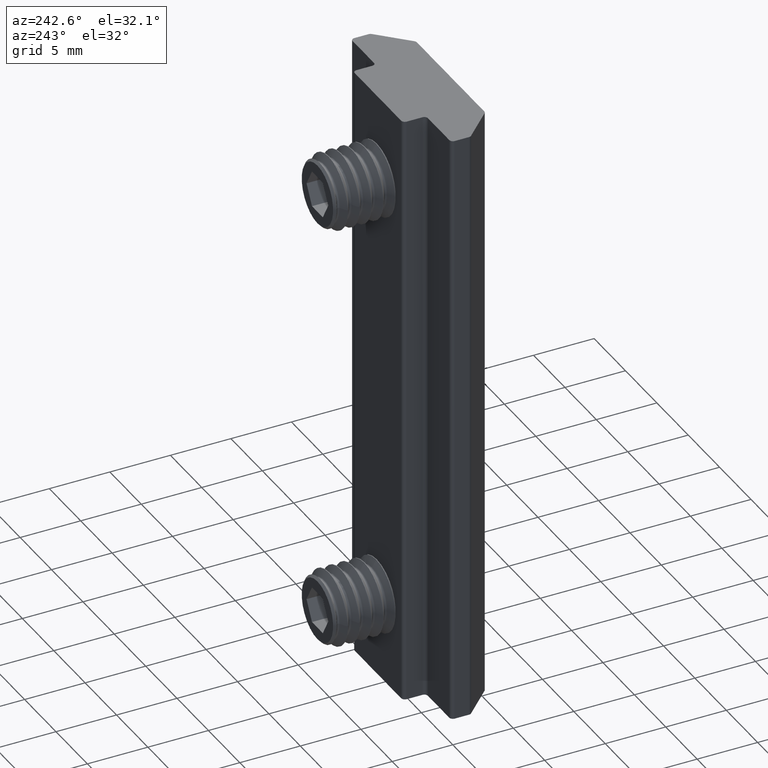
[diagram: clean part render]
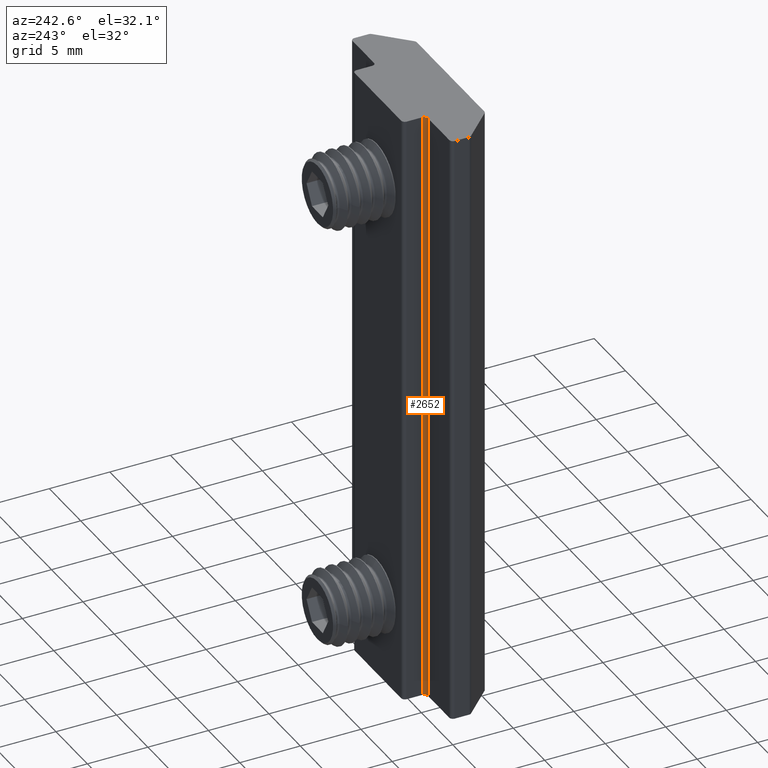
[diagram: same view with one face highlighted and labeled with its STEP entity id]
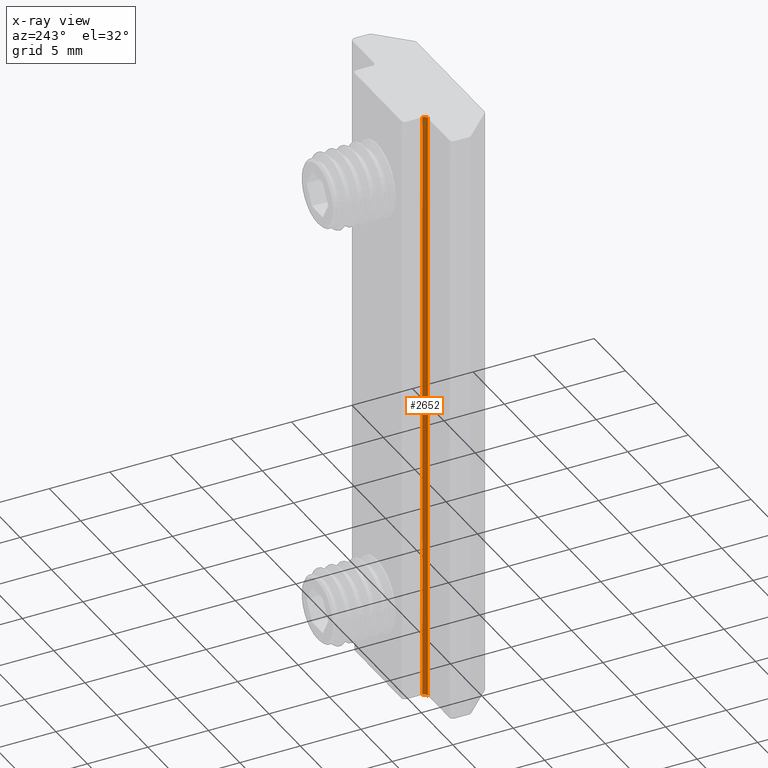
[diagram: x-ray of the same camera — body ghosted, the highlighted face saturated]
A machine part, auxiliary view. The second image highlights one B-rep face of the part: STEP entity #2652.
The next image is the same camera in x-ray: the body ghosted, the highlighted face saturated — about 0% of this face is hidden behind the body in this view.
In plain terms, the highlighted cylindrical surface (edge-blend (fillet) strip) has radius 0.3 mm, axis along (0, 0, 1).
Its self-contained STEP definition (entity closure, byte-faithful):
#135 = DIRECTION ( 'NONE',  ( 1.000000000000000000, 0.0000000000000000000, 0.0000000000000000000 ) ) ;
#172 = CARTESIAN_POINT ( 'NONE',  ( -4.299999999999997200, 4.099999999999997900, 25.00000000000000000 ) ) ;
#180 = VERTEX_POINT ( 'NONE', #1758 ) ;
#192 = DIRECTION ( 'NONE',  ( -0.0000000000000000000, 0.0000000000000000000, 1.000000000000000000 ) ) ;
#405 = VERTEX_POINT ( 'NONE', #1205 ) ;
#531 = CIRCLE ( 'NONE', #1572, 0.2999999999999999300 ) ;
#724 = VERTEX_POINT ( 'NONE', #1437 ) ;
#1117 = CARTESIAN_POINT ( 'NONE',  ( -4.299999999999997200, 4.399999999999997700, 25.00000000000000000 ) ) ;
#1122 = VECTOR ( 'NONE', #1414, 1000.000000000000000 ) ;
#1129 = DIRECTION ( 'NONE',  ( 0.0000000000000000000, 0.0000000000000000000, 1.000000000000000000 ) ) ;
#1160 = DIRECTION ( 'NONE',  ( 1.000000000000000000, 0.0000000000000000000, 0.0000000000000000000 ) ) ;
#1205 = CARTESIAN_POINT ( 'NONE',  ( -3.999999999999997300, 4.399999999999997700, 25.00000000000000000 ) ) ;
#1217 = EDGE_CURVE ( 'NONE', #180, #405, #3633, .T. ) ;
#1316 = EDGE_CURVE ( 'NONE', #724, #180, #2554, .T. ) ;
#1414 = DIRECTION ( 'NONE',  ( 0.0000000000000000000, 0.0000000000000000000, 1.000000000000000000 ) ) ;
#1437 = CARTESIAN_POINT ( 'NONE',  ( -4.299999999999997200, 4.099999999999997900, -25.00000000000000000 ) ) ;
#1491 = VECTOR ( 'NONE', #192, 1000.000000000000000 ) ;
#1572 = AXIS2_PLACEMENT_3D ( 'NONE', #1117, #2193, #3204 ) ;
#1622 = ORIENTED_EDGE ( 'NONE', *, *, #1217, .F. ) ;
#1758 = CARTESIAN_POINT ( 'NONE',  ( -3.999999999999997300, 4.399999999999997700, -25.00000000000000000 ) ) ;
#2193 = DIRECTION ( 'NONE',  ( -0.0000000000000000000, -0.0000000000000000000, -1.000000000000000000 ) ) ;
#2262 = CARTESIAN_POINT ( 'NONE',  ( -4.299999999999997200, 4.099999999999997900, 25.00000000000000000 ) ) ;
#2411 = CARTESIAN_POINT ( 'NONE',  ( -3.999999999999997300, 4.399999999999997700, 25.00000000000000000 ) ) ;
#2554 = CIRCLE ( 'NONE', #3402, 0.2999999999999999300 ) ;
#2652 = ADVANCED_FACE ( 'NONE', ( #2757 ), #4375, .F. ) ;
#2701 = AXIS2_PLACEMENT_3D ( 'NONE', #3883, #1129, #1160 ) ;
#2757 = FACE_OUTER_BOUND ( 'NONE', #4090, .T. ) ;
#2913 = EDGE_CURVE ( 'NONE', #405, #4104, #531, .T. ) ;
#3007 = ORIENTED_EDGE ( 'NONE', *, *, #3519, .T. ) ;
#3163 = DIRECTION ( 'NONE',  ( 0.0000000000000000000, 0.0000000000000000000, 1.000000000000000000 ) ) ;
#3204 = DIRECTION ( 'NONE',  ( 1.000000000000000000, 0.0000000000000000000, 0.0000000000000000000 ) ) ;
#3402 = AXIS2_PLACEMENT_3D ( 'NONE', #3535, #3163, #135 ) ;
#3519 = EDGE_CURVE ( 'NONE', #724, #4104, #3888, .T. ) ;
#3535 = CARTESIAN_POINT ( 'NONE',  ( -4.299999999999997200, 4.399999999999997700, -25.00000000000000000 ) ) ;
#3633 = LINE ( 'NONE', #2411, #1122 ) ;
#3883 = CARTESIAN_POINT ( 'NONE',  ( -4.299999999999997200, 4.399999999999997700, 25.00000000000000000 ) ) ;
#3888 = LINE ( 'NONE', #2262, #1491 ) ;
#4058 = ORIENTED_EDGE ( 'NONE', *, *, #1316, .F. ) ;
#4090 = EDGE_LOOP ( 'NONE', ( #4058, #3007, #4256, #1622 ) ) ;
#4104 = VERTEX_POINT ( 'NONE', #172 ) ;
#4256 = ORIENTED_EDGE ( 'NONE', *, *, #2913, .F. ) ;
#4375 = CYLINDRICAL_SURFACE ( 'NONE', #2701, 0.2999999999999999300 ) ;